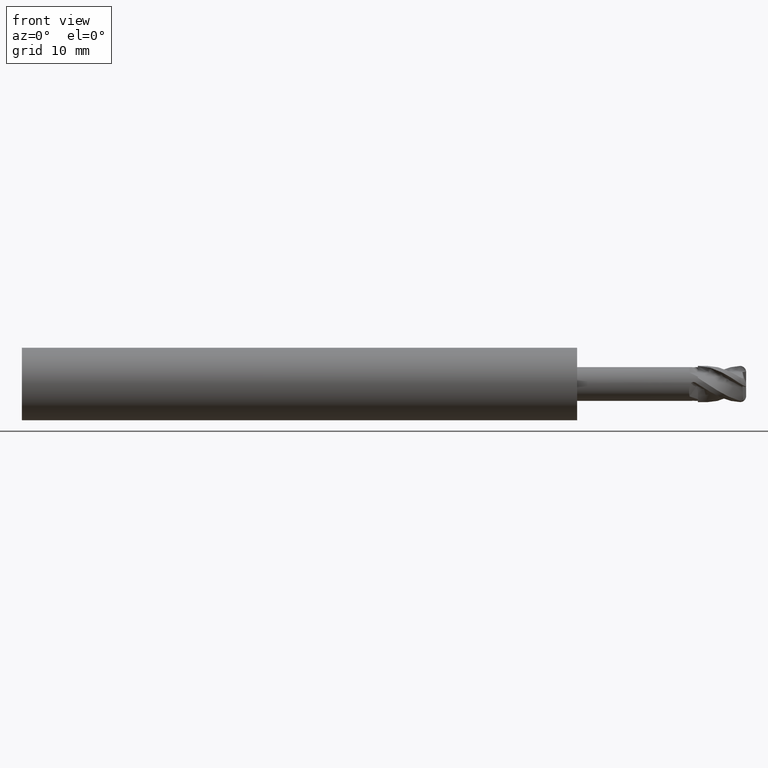
[diagram: clean part render]
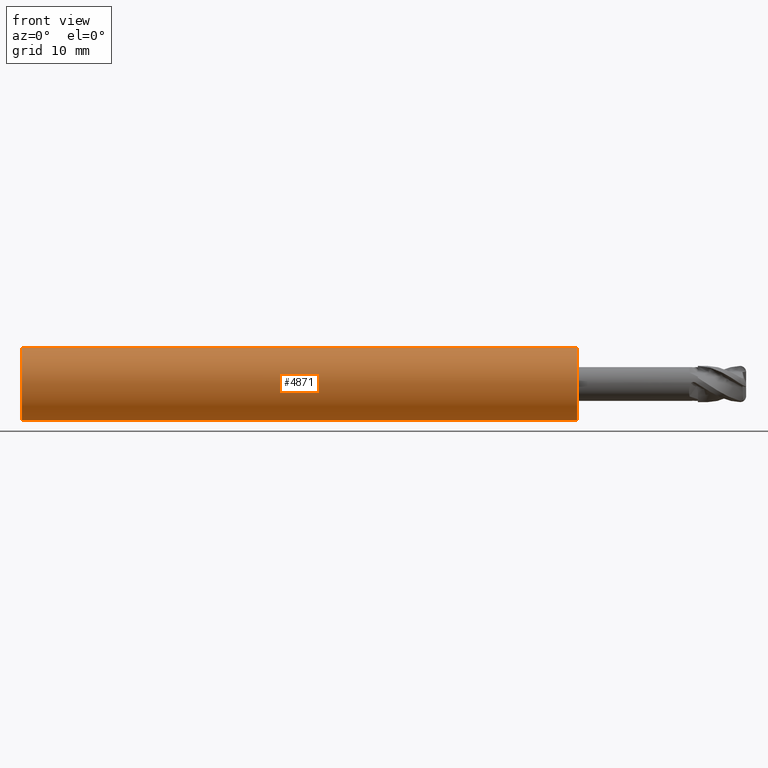
[diagram: same view with one face highlighted and labeled with its STEP entity id]
A machine part, front view. The second image highlights one B-rep face of the part: STEP entity #4871.
In plain terms, the highlighted cylindrical surface (edge-blend (fillet) strip) has radius 3 mm, axis along (-1, -0, -0).
Its self-contained STEP definition (entity closure, byte-faithful):
#4 = VERTEX_POINT ( 'NONE', #4997 ) ;
#779 = CARTESIAN_POINT ( 'NONE',  ( -36.00000000000000000, 3.673940397442068700E-016, -3.000000000000005800 ) ) ;
#801 = CARTESIAN_POINT ( 'NONE',  ( 10.00000000000000900, 3.673940397442074200E-016, -3.000000000000012000 ) ) ;
#811 = CARTESIAN_POINT ( 'NONE',  ( 10.00000000000000900, 0.0000000000000000000, 3.000000000000012000 ) ) ;
#1931 = LINE ( 'NONE', #3318, #1971 ) ;
#1939 = LINE ( 'NONE', #3223, #1968 ) ;
#1968 = VECTOR ( 'NONE', #3226, 1000.000000000000000 ) ;
#1971 = VECTOR ( 'NONE', #3319, 1000.000000000000000 ) ;
#2006 = FACE_OUTER_BOUND ( 'NONE', #4604, .T. ) ;
#2015 = CYLINDRICAL_SURFACE ( 'NONE', #4646, 3.000000000000008900 ) ;
#2058 = CIRCLE ( 'NONE', #4733, 3.000000000000012000 ) ;
#2073 = CIRCLE ( 'NONE', #4740, 3.000000000000005800 ) ;
#2899 = CARTESIAN_POINT ( 'NONE',  ( -36.00000000000000000, 0.0000000000000000000, 0.0000000000000000000 ) ) ;
#2914 = DIRECTION ( 'NONE',  ( -1.000000000000000000, -0.0000000000000000000, -0.0000000000000000000 ) ) ;
#2915 = DIRECTION ( 'NONE',  ( 0.0000000000000000000, 0.0000000000000000000, 1.000000000000000000 ) ) ;
#3032 = CARTESIAN_POINT ( 'NONE',  ( 10.00000000000000900, 0.0000000000000000000, 0.0000000000000000000 ) ) ;
#3037 = DIRECTION ( 'NONE',  ( -1.000000000000000000, -0.0000000000000000000, -0.0000000000000000000 ) ) ;
#3038 = DIRECTION ( 'NONE',  ( 0.0000000000000000000, 0.0000000000000000000, 1.000000000000000000 ) ) ;
#3223 = CARTESIAN_POINT ( 'NONE',  ( -39.76065438357068200, 0.0000000000000000000, 3.000000000000008900 ) ) ;
#3226 = DIRECTION ( 'NONE',  ( -1.000000000000000000, -0.0000000000000000000, -0.0000000000000000000 ) ) ;
#3318 = CARTESIAN_POINT ( 'NONE',  ( -39.76065438357068200, 3.673940397442070200E-016, -3.000000000000008900 ) ) ;
#3319 = DIRECTION ( 'NONE',  ( -1.000000000000000000, -0.0000000000000000000, -0.0000000000000000000 ) ) ;
#3655 = DIRECTION ( 'NONE',  ( 0.0000000000000000000, 0.0000000000000000000, 1.000000000000000000 ) ) ;
#3876 = DIRECTION ( 'NONE',  ( -1.000000000000000000, -0.0000000000000000000, -0.0000000000000000000 ) ) ;
#3882 = CARTESIAN_POINT ( 'NONE',  ( -39.76065438357068200, 0.0000000000000000000, 0.0000000000000000000 ) ) ;
#4457 = ORIENTED_EDGE ( 'NONE', *, *, #4809, .T. ) ;
#4476 = ORIENTED_EDGE ( 'NONE', *, *, #4845, .F. ) ;
#4555 = ORIENTED_EDGE ( 'NONE', *, *, #4744, .T. ) ;
#4578 = ORIENTED_EDGE ( 'NONE', *, *, #4710, .F. ) ;
#4604 = EDGE_LOOP ( 'NONE', ( #4476, #4555, #4457, #4578 ) ) ;
#4646 = AXIS2_PLACEMENT_3D ( 'NONE', #3882, #3876, #3655 ) ;
#4710 = EDGE_CURVE ( 'NONE', #4945, #4, #2073, .T. ) ;
#4733 = AXIS2_PLACEMENT_3D ( 'NONE', #3032, #3037, #3038 ) ;
#4740 = AXIS2_PLACEMENT_3D ( 'NONE', #2899, #2914, #2915 ) ;
#4744 = EDGE_CURVE ( 'NONE', #4986, #5000, #2058, .T. ) ;
#4809 = EDGE_CURVE ( 'NONE', #5000, #4, #1939, .T. ) ;
#4845 = EDGE_CURVE ( 'NONE', #4986, #4945, #1931, .T. ) ;
#4871 = ADVANCED_FACE ( 'NONE', ( #2006 ), #2015, .T. ) ;
#4945 = VERTEX_POINT ( 'NONE', #779 ) ;
#4986 = VERTEX_POINT ( 'NONE', #801 ) ;
#4997 = CARTESIAN_POINT ( 'NONE',  ( -36.00000000000000000, 0.0000000000000000000, 3.000000000000005800 ) ) ;
#5000 = VERTEX_POINT ( 'NONE', #811 ) ;